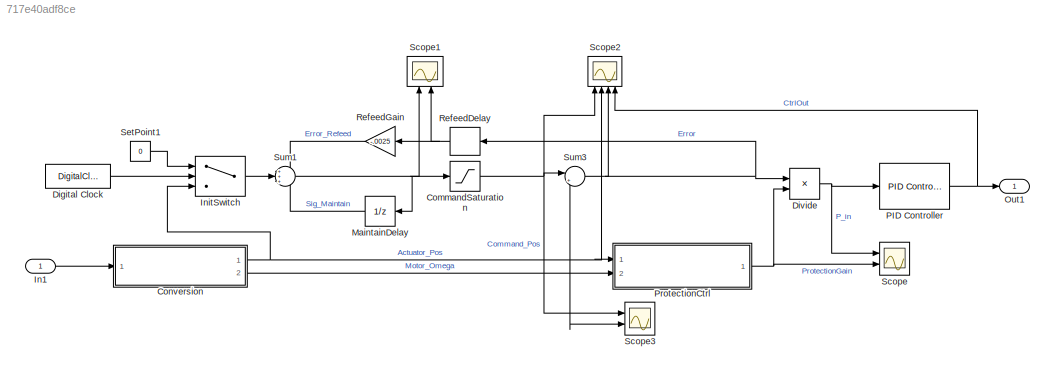
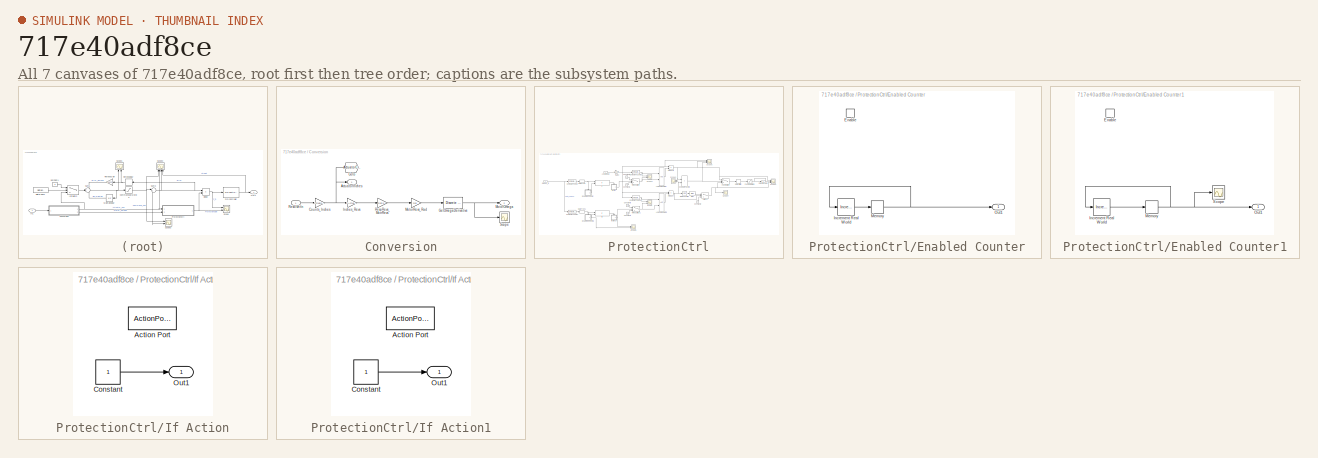
[diagram: thumbnail index - all 7 canvases of the model, root first then tree order]
MODEL slx_717e40adf8ce
KIND model
CONFIG InitFcn = Mot_Init
BLOCK [Saturate] CommandSaturation
  InputPortMap = u0
  LowerLimit = -10
  Ports = [1, 1]
  UpperLimit = 10
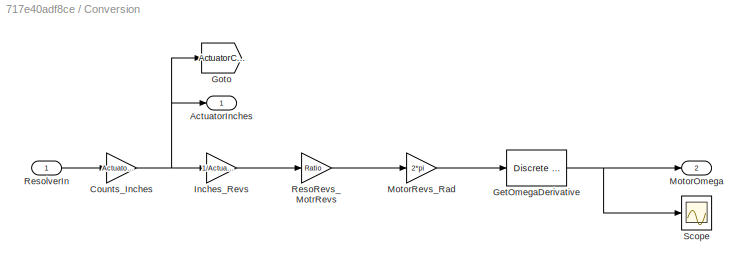
BLOCK [SubSystem] Conversion
  Ports = [1, 2]
  RequestExecContextInheritance = off
BLOCK [Outport] Conversion/ActuatorInches
  IconDisplay = Port number
BLOCK [Gain] Conversion/Counts_Inches
  Gain = Actuator_Length/Dig_Limit
  OutDataTypeStr = Inherit: Inherit via internal rule
  ParamDataTypeStr = Inherit: Inherit via internal rule
  SaturateOnIntegerOverflow = off
BLOCK [Reference] Conversion/GetOmegaDerivative  REF=simulink/Discrete/Discrete Derivative
  DoSatur = off
  ICPrevScaledInput = 0.0
  InputProcessing = Elements as channels (sample based)
  LockScale = off
  OutDataType = fixdt(1, 16)
  OutDataTypeStr = Inherit: Inherit via internal rule
  OutMax = []
  OutMin = []
  OutScaling = 2^-10
  OutputDataTypeScalingMode = Inherit via internal rule
  Ports = [1, 1]
  RndMeth = Floor
  SourceBlock = simulink/Discrete/Discrete Derivative
  SourceType = Discrete Derivative
  gainval = 1
BLOCK [Goto] Conversion/Goto
  Commented = on
  GotoTag = ActuatorCtrlCalc
  TagVisibility = global
BLOCK [Gain] Conversion/Inches_Revs
  Gain = 1/Actuator_Length
  OutDataTypeStr = Inherit: Inherit via internal rule
  ParamDataTypeStr = Inherit: Inherit via internal rule
  SaturateOnIntegerOverflow = off
BLOCK [Outport] Conversion/MotorOmega
  IconDisplay = Port number
  Port = 2
BLOCK [Gain] Conversion/MotorRevs_Rad
  Gain = 2*pi
  OutDataTypeStr = Inherit: Inherit via internal rule
  ParamDataTypeStr = Inherit: Inherit via internal rule
  SaturateOnIntegerOverflow = off
BLOCK [Gain] Conversion/ResoRevs_MotrRevs
  Gain = Ratio
  OutDataTypeStr = Inherit: Inherit via internal rule
  ParamDataTypeStr = Inherit: Inherit via internal rule
  SaturateOnIntegerOverflow = off
BLOCK [Inport] Conversion/ResolverIn
  IconDisplay = Port number
BLOCK [Scope] Conversion/Scope
  DataFormat = StructureWithTime
  Floating = off
  LimitDataPoints = off
  NumInputPorts = 1
  Ports = [1]
  SaveName = ScopeData3
  ShowLegends = off
  YMax = 351615.25826
  YMin = -19990.6417
BLOCK [DigitalClock] Digital Clock
  SampleTime = .001
BLOCK [Product] Divide
  InputSameDT = off
  Inputs = */
  OutDataTypeStr = Inherit: Inherit via internal rule
  Ports = [2, 1]
  RndMeth = Floor
  SaturateOnIntegerOverflow = off
BLOCK [Inport] In1
  IconDisplay = Port number
  OutDataTypeStr = double
  PortDimensions = 1
  SampleTime = [0.001,0]
  SamplingMode = Sample based
  SignalType = real
BLOCK [Switch] InitSwitch
  Criteria = u2 > Threshold
  InputSameDT = off
  SaturateOnIntegerOverflow = off
  Threshold = ControllerRate-SampleSize
BLOCK [UnitDelay] MaintainDelay
  InputProcessing = Elements as channels (sample based)
  SampleTime = -1
BLOCK [Outport] Out1
  IconDisplay = Port number
  OutDataTypeStr = double
  PortDimensions = 1
  SampleTime = [0.001,0]
  SamplingMode = Sample based
  SignalType = real
BLOCK [Reference] PID Controller  REF=simulink/Continuous/PID Controller
  AntiWindupMode = none
  Controller = P
  D = .01
  DOutDataTypeStr = Inherit: Inherit via internal rule
  DOutMax = []
  DOutMin = []
  DParamDataTypeStr = Inherit: Inherit via internal rule
  DParamMax = []
  DParamMin = []
  ExternalReset = none
  FilterContinuousStateAttributes = ''
  FilterMethod = Forward Euler
  FilterOutDataTypeStr = Inherit: Inherit via internal rule
  FilterOutMax = []
  FilterOutMin = []
  FilterRTWStateStorageClass = Auto
  FilterStateMustResolveToSignalObject = off
  Form = Parallel
  I = .1
  IOutDataTypeStr = Inherit: Inherit via internal rule
  IOutMax = []
  IOutMin = []
  IParamDataTypeStr = Inherit: Inherit via internal rule
  IParamMax = []
  IParamMin = []
  IgnoreLimit = off
  InitialConditionForFilter = 0
  InitialConditionForIntegrator = 0
  InitialConditionSource = internal
  IntegratorContinuousStateAttributes = ''
  IntegratorMethod = Forward Euler
  IntegratorOutDataTypeStr = Inherit: Inherit via internal rule
  IntegratorOutMax = []
  IntegratorOutMin = []
  IntegratorRTWStateStorageClass = Auto
  IntegratorStateMustResolveToSignalObject = off
  Kb = 1
  KbOutDataTypeStr = Inherit: Inherit via internal rule
  KbOutMax = []
  KbOutMin = []
  KbParamDataTypeStr = Inherit: Inherit via internal rule
  KbParamMax = []
  KbParamMin = []
  Kt = 1
  KtOutDataTypeStr = Inherit: Inherit via internal rule
  KtOutMax = []
  KtOutMin = []
  KtParamDataTypeStr = Inherit: Inherit via internal rule
  KtParamMax = []
  KtParamMin = []
  LimitOutput = on
  LinearizeAsGain = on
  LockScale = off
  LowerSaturationLimit = -14
  N = 4.27601467747136
  NOutDataTypeStr = Inherit: Inherit via internal rule
  NOutMax = []
  NOutMin = []
  NParamDataTypeStr = Inherit: Inherit via internal rule
  NParamMax = []
  NParamMin = []
  P = 20
  POutDataTypeStr = Inherit: Inherit via internal rule
  POutMax = []
  POutMin = []
  PParamDataTypeStr = Inherit: Inherit via internal rule
  PParamMax = []
  PParamMin = []
  Ports = [1, 1]
  RndMeth = Floor
  SampleTime = -1
  SaturateOnIntegerOverflow = off
  SaturationOutDataTypeStr = Inherit: Same as input
  SaturationOutMax = []
  SaturationOutMin = []
  SourceBlock = simulink/Continuous/PID Controller
  SourceType = PID 1dof
  SumAccumDataTypeStr = Inherit: Inherit via internal rule
  SumDAccumDataTypeStr = Inherit: Inherit via internal rule
  SumDOutDataTypeStr = Inherit: Inherit via internal rule
  SumDOutMax = []
  SumDOutMin = []
  SumI1AccumDataTypeStr = Inherit: Inherit via internal rule
  SumI1OutDataTypeStr = Inherit: Inherit via internal rule
  SumI1OutMax = []
  SumI1OutMin = []
  SumI2AccumDataTypeStr = Inherit: Inherit via internal rule
  SumI2OutDataTypeStr = Inherit: Inherit via internal rule
  SumI2OutMax = []
  SumI2OutMin = []
  SumI3AccumDataTypeStr = Inherit: Inherit via internal rule
  SumI3OutDataTypeStr = Inherit: Inherit via internal rule
  SumI3OutMax = []
  SumI3OutMin = []
  SumOutDataTypeStr = Inherit: Inherit via internal rule
  SumOutMax = []
  SumOutMin = []
  TimeDomain = Discrete-time
  TrackingMode = off
  UpperSaturationLimit = 14
  ZeroCross = on
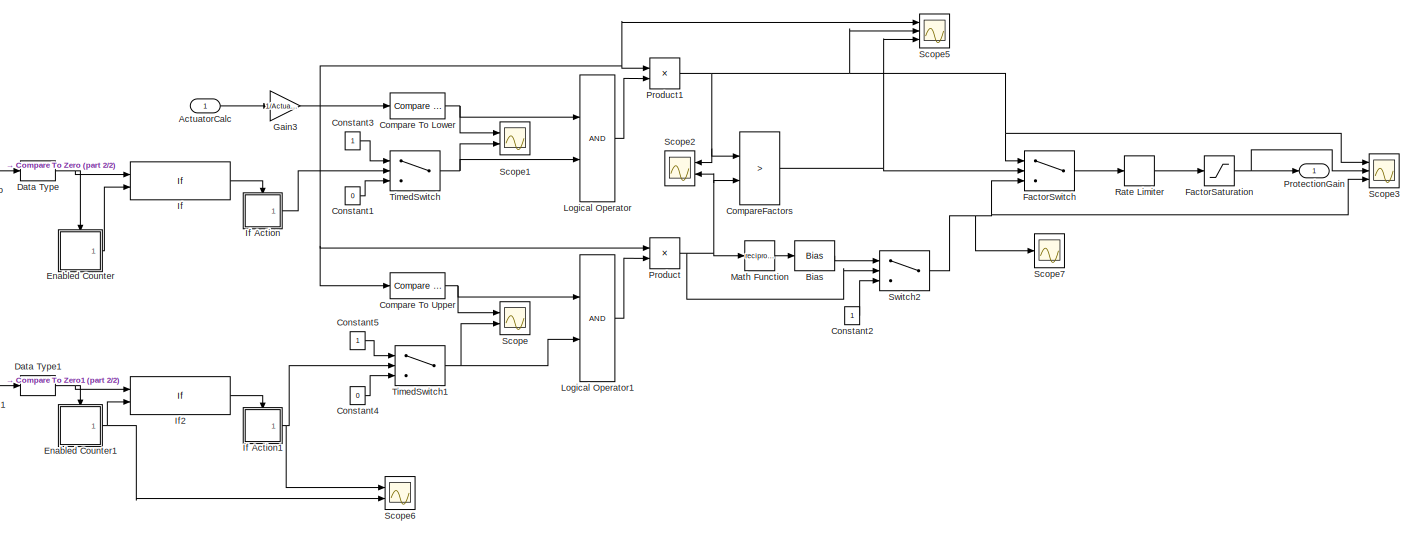
[diagram: ProtectionCtrl - part 1/2, most of the canvas]
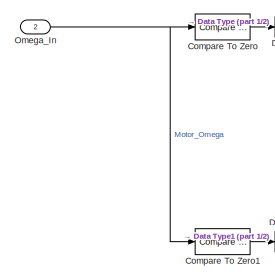
[diagram: ProtectionCtrl - part 2/2, middle left region]
BLOCK [SubSystem] ProtectionCtrl
  Ports = [2, 1]
  RequestExecContextInheritance = off
BLOCK [Inport] ProtectionCtrl/ActuatorCalc
  IconDisplay = Port number
BLOCK [Bias] ProtectionCtrl/Bias
  Bias = -1
  SaturateOnIntegerOverflow = off
BLOCK [Reference] ProtectionCtrl/Compare To Lower  REF=simulink/Logic and Bit
Operations/Compare
To Constant
  OutDataTypeStr = boolean
  Ports = [1, 1]
  SourceBlock = simulink/Logic and Bit\nOperations/Compare\nTo Constant
  SourceType = Compare To Constant
  ZeroCross = on
  const = LowerProtectionFraction
  relop = <=
BLOCK [Reference] ProtectionCtrl/Compare To Upper  REF=simulink/Logic and Bit
Operations/Compare
To Constant
  OutDataTypeStr = boolean
  Ports = [1, 1]
  SourceBlock = simulink/Logic and Bit\nOperations/Compare\nTo Constant
  SourceType = Compare To Constant
  ZeroCross = on
  const = UpperProtectionFraction
  relop = >=
BLOCK [Reference] ProtectionCtrl/Compare To Zero  REF=simulink/Logic and Bit
Operations/Compare
To Constant
  OutDataTypeStr = boolean
  Ports = [1, 1]
  SourceBlock = simulink/Logic and Bit\nOperations/Compare\nTo Constant
  SourceType = Compare To Constant
  ZeroCross = on
  const = 0
  relop = <
BLOCK [Reference] ProtectionCtrl/Compare To Zero1  REF=simulink/Logic and Bit
Operations/Compare
To Constant
  OutDataTypeStr = boolean
  Ports = [1, 1]
  SourceBlock = simulink/Logic and Bit\nOperations/Compare\nTo Constant
  SourceType = Compare To Constant
  ZeroCross = on
  const = 0
  relop = >
BLOCK [RelationalOperator] ProtectionCtrl/CompareFactors
  Operator = >
  OutDataTypeStr = boolean
  Ports = [2, 1]
BLOCK [Constant] ProtectionCtrl/Constant1
  Value = 0
BLOCK [Constant] ProtectionCtrl/Constant2
BLOCK [Constant] ProtectionCtrl/Constant3
BLOCK [Constant] ProtectionCtrl/Constant4
  Value = 0
BLOCK [Constant] ProtectionCtrl/Constant5
BLOCK [DataTypeConversion] ProtectionCtrl/Data Type
  OutDataTypeStr = double
  RndMeth = Floor
  SaturateOnIntegerOverflow = off
BLOCK [DataTypeConversion] ProtectionCtrl/Data Type1
  OutDataTypeStr = double
  RndMeth = Floor
  SaturateOnIntegerOverflow = off
BLOCK [SubSystem] ProtectionCtrl/Enabled Counter
  Ports = [0, 1, 1]
  RequestExecContextInheritance = off
  TreatAsAtomicUnit = on
BLOCK [EnablePort] ProtectionCtrl/Enabled Counter/Enable
  Ports = []
  StatesWhenEnabling = reset
BLOCK [Reference] ProtectionCtrl/Enabled Counter/Increment Real World  REF=simulink/Additional Math
& Discrete/Additional Math:
Increment - Decrement/Increment
Real World
  DisableCoverage = on
  Ports = [1, 1]
  SourceBlock = simulink/Additional Math\n& Discrete/Additional Math:\nIncrement - Decrement/Increment\nReal World
  SourceType = Real World Value Increment
BLOCK [Memory] ProtectionCtrl/Enabled Counter/Memory
  InheritSampleTime = on
  LinearizeAsDelay = on
BLOCK [Outport] ProtectionCtrl/Enabled Counter/Out1
  IconDisplay = Port number
  InitialOutput = 0
  OutputWhenDisabled = reset
BLOCK [SubSystem] ProtectionCtrl/Enabled Counter1
  Ports = [0, 1, 1]
  RequestExecContextInheritance = off
  TreatAsAtomicUnit = on
BLOCK [EnablePort] ProtectionCtrl/Enabled Counter1/Enable
  Ports = []
  StatesWhenEnabling = reset
BLOCK [Reference] ProtectionCtrl/Enabled Counter1/Increment Real World  REF=simulink/Additional Math
& Discrete/Additional Math:
Increment - Decrement/Increment
Real World
  DisableCoverage = on
  Ports = [1, 1]
  SourceBlock = simulink/Additional Math\n& Discrete/Additional Math:\nIncrement - Decrement/Increment\nReal World
  SourceType = Real World Value Increment
BLOCK [Memory] ProtectionCtrl/Enabled Counter1/Memory
  InheritSampleTime = on
  LinearizeAsDelay = on
BLOCK [Outport] ProtectionCtrl/Enabled Counter1/Out1
  IconDisplay = Port number
  InitialOutput = 0
  OutputWhenDisabled = reset
BLOCK [Scope] ProtectionCtrl/Enabled Counter1/Scope
  DataFormat = StructureWithTime
  Floating = off
  LimitDataPoints = off
  NumInputPorts = 1
  Ports = [1]
  SaveName = ScopeData1
  ShowLegends = off
  YMax = 106585.875
  YMin = -11842.875
BLOCK [Saturate] ProtectionCtrl/FactorSaturation
  InputPortMap = u0
  LowerLimit = .01
  Ports = [1, 1]
  UpperLimit = 1
BLOCK [Switch] ProtectionCtrl/FactorSwitch
  Criteria = u2 > Threshold
  InputSameDT = off
  SaturateOnIntegerOverflow = off
BLOCK [Gain] ProtectionCtrl/Gain3
  Gain = 1/Actuator_Length
  OutDataTypeStr = Inherit: Inherit via internal rule
  ParamDataTypeStr = Inherit: Inherit via internal rule
  SaturateOnIntegerOverflow = off
BLOCK [If] ProtectionCtrl/If
  IfExpression = u1 == 1 & u2 > 2000
  NumInputs = 2
  Ports = [2, 1]
  ShowElse = off
BLOCK [SubSystem] ProtectionCtrl/If Action
  Ports = [0, 1, 0, 0, 0, 0, 0, 1]
  RequestExecContextInheritance = off
  TreatAsAtomicUnit = on
BLOCK [ActionPort] ProtectionCtrl/If Action/Action Port
  ActionType = then
BLOCK [Constant] ProtectionCtrl/If Action/Constant
BLOCK [Outport] ProtectionCtrl/If Action/Out1
  IconDisplay = Port number
  InitialOutput = 0
  OutputWhenDisabled = reset
BLOCK [SubSystem] ProtectionCtrl/If Action1
  Ports = [0, 1, 0, 0, 0, 0, 0, 1]
  RequestExecContextInheritance = off
  TreatAsAtomicUnit = on
BLOCK [ActionPort] ProtectionCtrl/If Action1/Action Port
  ActionType = then
BLOCK [Constant] ProtectionCtrl/If Action1/Constant
BLOCK [Outport] ProtectionCtrl/If Action1/Out1
  IconDisplay = Port number
  InitialOutput = 0
  OutputWhenDisabled = reset
BLOCK [If] ProtectionCtrl/If2
  IfExpression = u1 == 1 & u2 > 2000
  NumInputs = 2
  Ports = [2, 1]
  ShowElse = off
BLOCK [Logic] ProtectionCtrl/Logical Operator
  AllPortsSameDT = off
  OutDataTypeStr = boolean
  Ports = [2, 1]
BLOCK [Logic] ProtectionCtrl/Logical Operator1
  AllPortsSameDT = off
  OutDataTypeStr = boolean
  Ports = [2, 1]
BLOCK [Math] ProtectionCtrl/Math Function
  Operator = reciprocal
  Ports = [1, 1]
BLOCK [Inport] ProtectionCtrl/Omega_In
  IconDisplay = Port number
  Port = 2
BLOCK [Product] ProtectionCtrl/Product
  InputSameDT = off
  OutDataTypeStr = Inherit: Inherit via internal rule
  Ports = [2, 1]
  RndMeth = Floor
  SaturateOnIntegerOverflow = off
BLOCK [Product] ProtectionCtrl/Product1
  InputSameDT = off
  OutDataTypeStr = Inherit: Inherit via internal rule
  Ports = [2, 1]
  RndMeth = Floor
  SaturateOnIntegerOverflow = off
BLOCK [Outport] ProtectionCtrl/ProtectionGain
  IconDisplay = Port number
BLOCK [RateLimiter] ProtectionCtrl/Rate Limiter
  FallingSlewLimit = -.3
  RisingSlewLimit = 1000
  SampleTimeMode = inherited
BLOCK [Scope] ProtectionCtrl/Scope
  DataFormat = StructureWithTime
  Floating = off
  LimitDataPoints = off
  NumInputPorts = 2
  Ports = [2]
  SaveName = ScopeData2
  ShowLegends = off
  YMax = 1.125~1.03444
  YMin = -0.125~-0.06735
BLOCK [Scope] ProtectionCtrl/Scope1
  DataFormat = StructureWithTime
  Floating = off
  LimitDataPoints = off
  NumInputPorts = 2
  Ports = [2]
  SaveName = ScopeData3
  ShowLegends = off
  YMax = 1.125~1.125
  YMin = -0.125~-0.125
BLOCK [Scope] ProtectionCtrl/Scope2
  DataFormat = StructureWithTime
  Floating = off
  LimitDataPoints = off
  NumInputPorts = 2
  Ports = [2]
  SaveName = ScopeData4
  ShowLegends = off
  YMax = 1.00000~1.125
  YMin = -1.00000~-0.125
BLOCK [Scope] ProtectionCtrl/Scope3
  DataFormat = StructureWithTime
  Floating = off
  LimitDataPoints = off
  NumInputPorts = 3
  Ports = [3]
  SaveName = ScopeData4
  ShowLegends = off
  YMax = 1.00000~1.1~1.1
  YMin = -1.00000~0.9~0.9
BLOCK [Scope] ProtectionCtrl/Scope5
  DataFormat = StructureWithTime
  Floating = off
  LimitDataPoints = off
  NumInputPorts = 3
  Ports = [3]
  SaveName = ScopeData2
  ShowLegends = off
  YMax = 1.125~1.00000~1.00000
  YMin = -0.125~-1.00000~-1.00000
BLOCK [Scope] ProtectionCtrl/Scope6
  DataFormat = StructureWithTime
  Floating = off
  LimitDataPoints = off
  NumInputPorts = 2
  Ports = [2]
  SaveName = ScopeData5
  ShowLegends = off
  YMax = 1.125~106585.875
  YMin = -0.125~-11842.875
BLOCK [Scope] ProtectionCtrl/Scope7
  DataFormat = StructureWithTime
  Floating = off
  LimitDataPoints = off
  NumInputPorts = 1
  Ports = [1]
  SaveName = ScopeData4
  ShowLegends = off
  YMax = 1.1
  YMin = 0.9
BLOCK [Switch] ProtectionCtrl/Switch2
  Criteria = u2 > Threshold
  InputSameDT = off
  SaturateOnIntegerOverflow = off
BLOCK [Switch] ProtectionCtrl/TimedSwitch
  Criteria = u2 > Threshold
  InputSameDT = off
  SaturateOnIntegerOverflow = off
BLOCK [Switch] ProtectionCtrl/TimedSwitch1
  Criteria = u2 > Threshold
  InputSameDT = off
  SaturateOnIntegerOverflow = off
BLOCK [Delay] RefeedDelay
  DelayLength = 100
  InputPortMap = u0
  Ports = [1, 1]
BLOCK [Gain] RefeedGain
  Gain = -.0025
  OutDataTypeStr = Inherit: Inherit via internal rule
  ParamDataTypeStr = Inherit: Inherit via internal rule
  SaturateOnIntegerOverflow = off
BLOCK [Scope] Scope
  DataFormat = StructureWithTime
  Floating = off
  LimitDataPoints = off
  NumInputPorts = 2
  Ports = [2]
  ShowLegends = off
  YMax = 1.15954~5
  YMin = -0.43586~-5
BLOCK [Scope] Scope1
  DataFormat = StructureWithTime
  Floating = off
  LimitDataPoints = off
  NumInputPorts = 2
  Ports = [2]
  SaveName = ScopeData6
  ShowLegends = off
  YMax = 11.25~0.01689
  YMin = -1.25~-0.15204
BLOCK [Scope] Scope2
  DataFormat = StructureWithTime
  Floating = off
  LimitDataPoints = off
  NumInputPorts = 4
  Ports = [4]
  SaveName = ScopeData12
  ShowLegends = off
  YMax = 10.29522~10.625~0.03761~1.33576
  YMin = 8.15954~4.375~-0.33852~-12.02188
BLOCK [Scope] Scope3
  DataFormat = StructureWithTime
  Floating = off
  LimitDataPoints = off
  NumInputPorts = 2
  Ports = [2]
  SaveName = ScopeData7
  ShowLegends = off
  YMax = 6.50094~5
  YMin = -0.72233~-5
BLOCK [Constant] SetPoint1
  Value = 0
BLOCK [Sum] Sum1
  IconShape = round
  InputSameDT = off
  Inputs = +++
  OutDataTypeStr = Inherit: Inherit via internal rule
  Ports = [3, 1]
  SaturateOnIntegerOverflow = off
BLOCK [Sum] Sum3
  IconShape = round
  InputSameDT = off
  Inputs = |+-
  OutDataTypeStr = Inherit: Inherit via internal rule
  Ports = [2, 1]
  SaturateOnIntegerOverflow = off
NET CommandSaturation:1 -> Scope2:1, Scope3:1, Sum3:1
NET Conversion/Counts_Inches:1 -> Conversion/ActuatorInches:1, Conversion/Goto:1, Conversion/Inches_Revs:1
NET Conversion/GetOmegaDerivative:1 -> Conversion/MotorOmega:1, Conversion/Scope:1
LINE Conversion/Inches_Revs:1 -> Conversion/ResoRevs_MotrRevs:1
LINE Conversion/MotorRevs_Rad:1 -> Conversion/GetOmegaDerivative:1
LINE Conversion/ResoRevs_MotrRevs:1 -> Conversion/MotorRevs_Rad:1
LINE Conversion/ResolverIn:1 -> Conversion/Counts_Inches:1
NET Conversion:1 -> InitSwitch:3, ProtectionCtrl:1, Scope2:2, Scope3:2, Sum3:2
LINE Conversion:2 -> ProtectionCtrl:2
LINE Digital Clock:1 -> InitSwitch:2
NET Divide:1 -> PID Controller:1, Scope:1
LINE In1:1 -> Conversion:1
LINE InitSwitch:1 -> Sum1:2
LINE MaintainDelay:1 -> Sum1:3
NET PID Controller:1 -> Out1:1, Scope2:4
LINE ProtectionCtrl/ActuatorCalc:1 -> ProtectionCtrl/Gain3:1
LINE ProtectionCtrl/Bias:1 -> ProtectionCtrl/Switch2:1
NET ProtectionCtrl/Compare To Lower:1 -> ProtectionCtrl/Logical Operator:1, ProtectionCtrl/Scope1:1
NET ProtectionCtrl/Compare To Upper:1 -> ProtectionCtrl/Logical Operator1:1, ProtectionCtrl/Scope:1
LINE ProtectionCtrl/Compare To Zero1:1 -> ProtectionCtrl/Data Type1:1
LINE ProtectionCtrl/Compare To Zero:1 -> ProtectionCtrl/Data Type:1
NET ProtectionCtrl/CompareFactors:1 -> ProtectionCtrl/FactorSwitch:2, ProtectionCtrl/Scope5:3
LINE ProtectionCtrl/Constant1:1 -> ProtectionCtrl/TimedSwitch:3
LINE ProtectionCtrl/Constant2:1 -> ProtectionCtrl/Switch2:3
LINE ProtectionCtrl/Constant3:1 -> ProtectionCtrl/TimedSwitch:1
LINE ProtectionCtrl/Constant4:1 -> ProtectionCtrl/TimedSwitch1:3
LINE ProtectionCtrl/Constant5:1 -> ProtectionCtrl/TimedSwitch1:1
NET ProtectionCtrl/Data Type1:1 -> ProtectionCtrl/Enabled Counter1:enable, ProtectionCtrl/If2:1
NET ProtectionCtrl/Data Type:1 -> ProtectionCtrl/Enabled Counter:enable, ProtectionCtrl/If:1
LINE ProtectionCtrl/Enabled Counter/Increment Real World:1 -> ProtectionCtrl/Enabled Counter/Memory:1
NET ProtectionCtrl/Enabled Counter/Memory:1 -> ProtectionCtrl/Enabled Counter/Increment Real World:1, ProtectionCtrl/Enabled Counter/Out1:1
LINE ProtectionCtrl/Enabled Counter1/Increment Real World:1 -> ProtectionCtrl/Enabled Counter1/Memory:1
NET ProtectionCtrl/Enabled Counter1/Memory:1 -> ProtectionCtrl/Enabled Counter1/Increment Real World:1, ProtectionCtrl/Enabled Counter1/Out1:1, ProtectionCtrl/Enabled Counter1/Scope:1
NET ProtectionCtrl/Enabled Counter1:1 -> ProtectionCtrl/If2:2, ProtectionCtrl/Scope6:2
LINE ProtectionCtrl/Enabled Counter:1 -> ProtectionCtrl/If:2
NET ProtectionCtrl/FactorSaturation:1 -> ProtectionCtrl/ProtectionGain:1, ProtectionCtrl/Scope3:2
LINE ProtectionCtrl/FactorSwitch:1 -> ProtectionCtrl/Rate Limiter:1
NET ProtectionCtrl/Gain3:1 -> ProtectionCtrl/Compare To Lower:1, ProtectionCtrl/Compare To Upper:1, ProtectionCtrl/Product1:1, ProtectionCtrl/Product:1, ProtectionCtrl/Scope5:1
LINE ProtectionCtrl/If Action/Constant:1 -> ProtectionCtrl/If Action/Out1:1
LINE ProtectionCtrl/If Action1/Constant:1 -> ProtectionCtrl/If Action1/Out1:1
NET ProtectionCtrl/If Action1:1 -> ProtectionCtrl/Scope6:1, ProtectionCtrl/TimedSwitch1:2
LINE ProtectionCtrl/If Action:1 -> ProtectionCtrl/TimedSwitch:2
LINE ProtectionCtrl/If2:1 -> ProtectionCtrl/If Action1:ifaction
LINE ProtectionCtrl/If:1 -> ProtectionCtrl/If Action:ifaction
LINE ProtectionCtrl/Logical Operator1:1 -> ProtectionCtrl/Product:2
LINE ProtectionCtrl/Logical Operator:1 -> ProtectionCtrl/Product1:2
LINE ProtectionCtrl/Math Function:1 -> ProtectionCtrl/Bias:1
NET ProtectionCtrl/Omega_In:1 -> ProtectionCtrl/Compare To Zero1:1, ProtectionCtrl/Compare To Zero:1
NET ProtectionCtrl/Product1:1 -> ProtectionCtrl/CompareFactors:1, ProtectionCtrl/FactorSwitch:1, ProtectionCtrl/Scope2:1, ProtectionCtrl/Scope3:1, ProtectionCtrl/Scope5:2
NET ProtectionCtrl/Product:1 -> ProtectionCtrl/CompareFactors:2, ProtectionCtrl/Math Function:1, ProtectionCtrl/Scope2:2, ProtectionCtrl/Switch2:2
LINE ProtectionCtrl/Rate Limiter:1 -> ProtectionCtrl/FactorSaturation:1
NET ProtectionCtrl/Switch2:1 -> ProtectionCtrl/FactorSwitch:3, ProtectionCtrl/Scope3:3, ProtectionCtrl/Scope7:1
NET ProtectionCtrl/TimedSwitch1:1 -> ProtectionCtrl/Logical Operator1:2, ProtectionCtrl/Scope:2
NET ProtectionCtrl/TimedSwitch:1 -> ProtectionCtrl/Logical Operator:2, ProtectionCtrl/Scope1:2
NET ProtectionCtrl:1 -> Divide:2, Scope:2
NET RefeedDelay:1 -> RefeedGain:1, Scope1:2
LINE RefeedGain:1 -> Sum1:1
LINE SetPoint1:1 -> InitSwitch:1
NET Sum1:1 -> CommandSaturation:1, MaintainDelay:1, Scope1:1
NET Sum3:1 -> Divide:1, RefeedDelay:1, Scope2:3
note: NET lines group one-source signal fan-out (src -> all destinations, sorted); 1:1 wires keep LINE
